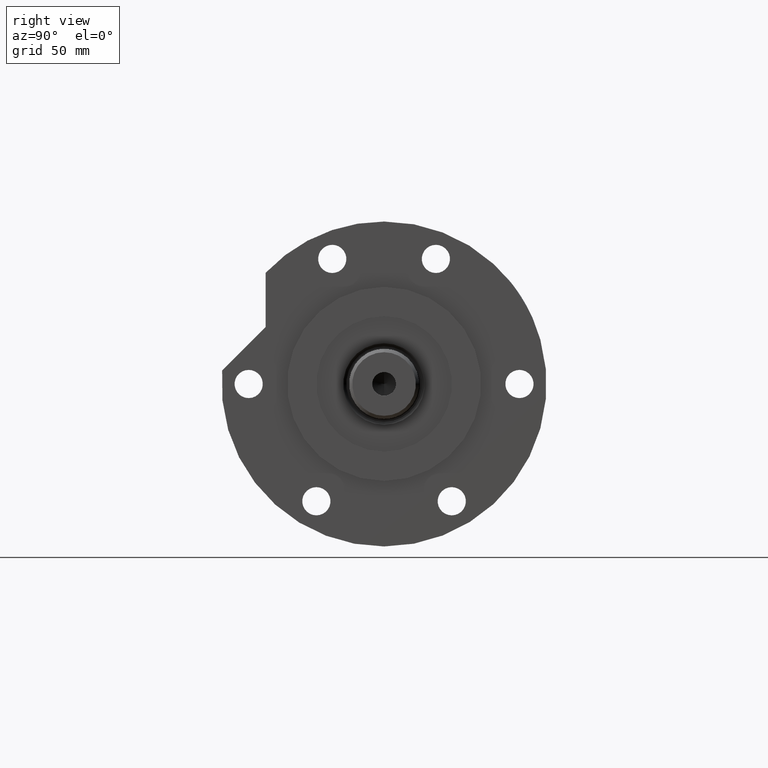
[diagram: clean part render]
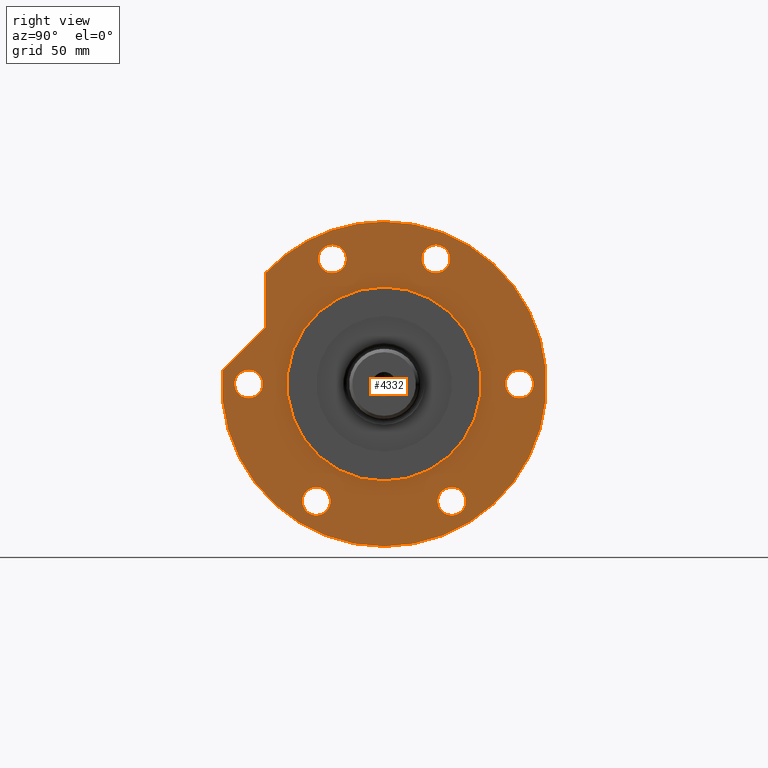
[diagram: same view with one face highlighted and labeled with its STEP entity id]
A machine part, right view. The second image highlights one B-rep face of the part: STEP entity #4332.
In plain terms, the highlighted planar face has unit normal (1, 0, -0).
Its self-contained STEP definition (entity closure, byte-faithful):
#8 = CIRCLE ( 'NONE', #1990, 6.249999999999999112 ) ;
#130 = EDGE_CURVE ( 'NONE', #2410, #4079, #4434, .T. ) ;
#204 = CARTESIAN_POINT ( 'NONE',  ( 6.249999999999999112, 60.00000000000000000, 24.00000000000000000 ) ) ;
#219 = DIRECTION ( 'NONE',  ( 1.000000000000000000, 0.000000000000000000, 0.000000000000000000 ) ) ;
#261 = EDGE_CURVE ( 'NONE', #2818, #5569, #3038, .T. ) ;
#343 = VERTEX_POINT ( 'NONE', #5575 ) ;
#356 = AXIS2_PLACEMENT_3D ( 'NONE', #4897, #642, #1614 ) ;
#377 = DIRECTION ( 'NONE',  ( 1.000000000000000000, 0.000000000000000000, 0.000000000000000000 ) ) ;
#382 = DIRECTION ( 'NONE',  ( 1.000000000000000000, 0.000000000000000000, 0.000000000000000000 ) ) ;
#387 = AXIS2_PLACEMENT_3D ( 'NONE', #3848, #1624, #5367 ) ;
#455 = CIRCLE ( 'NONE', #2235, 6.249999999999999112 ) ;
#506 = CARTESIAN_POINT ( 'NONE',  ( 49.28805468567554726, 52.48511851279232587, 24.00000000000000000 ) ) ;
#527 = DIRECTION ( 'NONE',  ( 1.000000000000000000, 0.000000000000000000, 0.000000000000000000 ) ) ;
#592 = CARTESIAN_POINT ( 'NONE',  ( 0.000000000000000000, -60.00000000000000000, 24.00000000000000000 ) ) ;
#618 = DIRECTION ( 'NONE',  ( 0.000000000000000000, 0.000000000000000000, 1.000000000000000000 ) ) ;
#635 = VERTEX_POINT ( 'NONE', #5763 ) ;
#642 = DIRECTION ( 'NONE',  ( 0.000000000000000000, 0.000000000000000000, 1.000000000000000000 ) ) ;
#656 = CIRCLE ( 'NONE', #1047, 6.249999999999998224 ) ;
#663 = ORIENTED_EDGE ( 'NONE', *, *, #1371, .F. ) ;
#676 = FACE_BOUND ( 'NONE', #3492, .T. ) ;
#680 = EDGE_CURVE ( 'NONE', #343, #4801, #656, .T. ) ;
#735 = FACE_BOUND ( 'NONE', #4569, .T. ) ;
#743 = DIRECTION ( 'NONE',  ( 1.000000000000000000, 0.000000000000000000, 0.000000000000000000 ) ) ;
#769 = CARTESIAN_POINT ( 'NONE',  ( -6.249999999999999112, -60.00000000000000000, 24.00000000000000000 ) ) ;
#787 = CIRCLE ( 'NONE', #5444, 6.249999999999998224 ) ;
#830 = ORIENTED_EDGE ( 'NONE', *, *, #1173, .F. ) ;
#1047 = AXIS2_PLACEMENT_3D ( 'NONE', #2746, #2713, #2179 ) ;
#1106 = DIRECTION ( 'NONE',  ( 0.000000000000000000, 0.000000000000000000, 1.000000000000000000 ) ) ;
#1130 = CARTESIAN_POINT ( 'NONE',  ( -51.96152422706638419, 29.99999999999987921, 24.00000000000000000 ) ) ;
#1173 = EDGE_CURVE ( 'NONE', #3926, #3024, #1958, .T. ) ;
#1177 = DIRECTION ( 'NONE',  ( 0.000000000000000000, 0.000000000000000000, 1.000000000000000000 ) ) ;
#1211 = EDGE_CURVE ( 'NONE', #3312, #4996, #4038, .T. ) ;
#1241 = CARTESIAN_POINT ( 'NONE',  ( -45.71152422706637708, 29.99999999999987921, 24.00000000000000000 ) ) ;
#1259 = CARTESIAN_POINT ( 'NONE',  ( 49.18277195067710039, 22.96100594190562560, 24.00000000000000000 ) ) ;
#1288 = CIRCLE ( 'NONE', #1690, 72.00000000000000000 ) ;
#1313 = EDGE_LOOP ( 'NONE', ( #3997, #4661 ) ) ;
#1352 = DIRECTION ( 'NONE',  ( 0.000000000000000000, 0.000000000000000000, 1.000000000000000000 ) ) ;
#1355 = VERTEX_POINT ( 'NONE', #2984 ) ;
#1371 = EDGE_CURVE ( 'NONE', #3024, #3926, #455, .T. ) ;
#1385 = VERTEX_POINT ( 'NONE', #4353 ) ;
#1582 = CARTESIAN_POINT ( 'NONE',  ( 0.000000000000000000, 0.000000000000000000, 24.00000000000000000 ) ) ;
#1595 = AXIS2_PLACEMENT_3D ( 'NONE', #1582, #3904, #527 ) ;
#1614 = DIRECTION ( 'NONE',  ( 1.000000000000000000, 0.000000000000000000, 0.000000000000000000 ) ) ;
#1624 = DIRECTION ( 'NONE',  ( 0.000000000000000000, 0.000000000000000000, 1.000000000000000000 ) ) ;
#1675 = VERTEX_POINT ( 'NONE', #5481 ) ;
#1680 = CIRCLE ( 'NONE', #387, 43.00000000000000000 ) ;
#1690 = AXIS2_PLACEMENT_3D ( 'NONE', #4303, #1352, #382 ) ;
#1751 = EDGE_CURVE ( 'NONE', #1355, #4996, #4536, .T. ) ;
#1764 = ORIENTED_EDGE ( 'NONE', *, *, #5665, .F. ) ;
#1780 = CARTESIAN_POINT ( 'NONE',  ( 0.000000000000000000, 52.48511851279232587, 24.00000000000000000 ) ) ;
#1818 = VERTEX_POINT ( 'NONE', #3897 ) ;
#1822 = ORIENTED_EDGE ( 'NONE', *, *, #130, .F. ) ;
#1898 = CIRCLE ( 'NONE', #2982, 6.249999999999999112 ) ;
#1957 = DIRECTION ( 'NONE',  ( 0.000000000000000000, 0.000000000000000000, 1.000000000000000000 ) ) ;
#1958 = CIRCLE ( 'NONE', #5409, 6.249999999999999112 ) ;
#1990 = AXIS2_PLACEMENT_3D ( 'NONE', #2017, #3414, #5774 ) ;
#2017 = CARTESIAN_POINT ( 'NONE',  ( 0.000000000000000000, 60.00000000000000000, 24.00000000000000000 ) ) ;
#2128 = FACE_BOUND ( 'NONE', #2930, .T. ) ;
#2153 = ORIENTED_EDGE ( 'NONE', *, *, #6033, .F. ) ;
#2179 = DIRECTION ( 'NONE',  ( 1.000000000000000000, 0.000000000000000000, 0.000000000000000000 ) ) ;
#2178 = AXIS2_PLACEMENT_3D ( 'NONE', #3043, #5415, #5912 ) ;
#2185 = AXIS2_PLACEMENT_3D ( 'NONE', #4860, #3798, #2965 ) ;
#2196 = FACE_BOUND ( 'NONE', #5375, .T. ) ;
#2206 = EDGE_LOOP ( 'NONE', ( #5190, #4192 ) ) ;
#2232 = DIRECTION ( 'NONE',  ( 0.000000000000000000, 0.000000000000000000, 1.000000000000000000 ) ) ;
#2235 = AXIS2_PLACEMENT_3D ( 'NONE', #592, #2897, #5276 ) ;
#2275 = CARTESIAN_POINT ( 'NONE',  ( 6.249999999999999112, -60.00000000000000000, 24.00000000000000000 ) ) ;
#2279 = CIRCLE ( 'NONE', #4656, 6.249999999999998224 ) ;
#2378 = CIRCLE ( 'NONE', #3958, 6.249999999999998224 ) ;
#2410 = VERTEX_POINT ( 'NONE', #2710 ) ;
#2447 = DIRECTION ( 'NONE',  ( 1.000000000000000000, 0.000000000000000000, 0.000000000000000000 ) ) ;
#2490 = CARTESIAN_POINT ( 'NONE',  ( 61.68277195067710750, -22.96100594190562560, 24.00000000000000000 ) ) ;
#2505 = DIRECTION ( 'NONE',  ( 0.000000000000000000, 0.000000000000000000, 1.000000000000000000 ) ) ;
#2539 = CARTESIAN_POINT ( 'NONE',  ( 25.21805468567554698, 52.48511851279232587, 24.00000000000000000 ) ) ;
#2626 = PLANE ( 'NONE',  #2178 ) ;
#2659 = FACE_BOUND ( 'NONE', #5754, .T. ) ;
#2670 = AXIS2_PLACEMENT_3D ( 'NONE', #3878, #1957, #4841 ) ;
#2671 = DIRECTION ( 'NONE',  ( 0.000000000000000000, 0.000000000000000000, 1.000000000000000000 ) ) ;
#2710 = CARTESIAN_POINT ( 'NONE',  ( -58.21152422706638419, 29.99999999999987921, 24.00000000000000000 ) ) ;
#2713 = DIRECTION ( 'NONE',  ( 0.000000000000000000, 0.000000000000000000, 1.000000000000000000 ) ) ;
#2735 = ORIENTED_EDGE ( 'NONE', *, *, #4056, .F. ) ;
#2746 = CARTESIAN_POINT ( 'NONE',  ( 55.43277195067710750, 22.96100594190562560, 24.00000000000000000 ) ) ;
#2766 = EDGE_CURVE ( 'NONE', #635, #1385, #1680, .T. ) ;
#2818 = VERTEX_POINT ( 'NONE', #2490 ) ;
#2849 = VECTOR ( 'NONE', #5561, 1000.000000000000000 ) ;
#2891 = CARTESIAN_POINT ( 'NONE',  ( -58.21152422706618523, -30.00000000000023093, 24.00000000000000000 ) ) ;
#2897 = DIRECTION ( 'NONE',  ( 0.000000000000000000, 0.000000000000000000, 1.000000000000000000 ) ) ;
#2915 = DIRECTION ( 'NONE',  ( 0.7071067811865513475, -0.7071067811865436870, 0.000000000000000000 ) ) ;
#2930 = EDGE_LOOP ( 'NONE', ( #1822, #1764 ) ) ;
#2938 = DIRECTION ( 'NONE',  ( 0.000000000000000000, 0.000000000000000000, 1.000000000000000000 ) ) ;
#2965 = DIRECTION ( 'NONE',  ( 1.000000000000000000, 0.000000000000000000, 0.000000000000000000 ) ) ;
#2982 = AXIS2_PLACEMENT_3D ( 'NONE', #4472, #2232, #219 ) ;
#2984 = CARTESIAN_POINT ( 'NONE',  ( 72.00000000000000000, 8.817456953860941711E-15, 24.00000000000000000 ) ) ;
#3024 = VERTEX_POINT ( 'NONE', #769 ) ;
#3038 = CIRCLE ( 'NONE', #356, 6.249999999999998224 ) ;
#3043 = CARTESIAN_POINT ( 'NONE',  ( 0.000000000000000000, 0.000000000000000000, 24.00000000000000000 ) ) ;
#3280 = ORIENTED_EDGE ( 'NONE', *, *, #3380, .F. ) ;
#3312 = VERTEX_POINT ( 'NONE', #2539 ) ;
#3380 = EDGE_CURVE ( 'NONE', #3400, #1675, #5842, .T. ) ;
#3400 = VERTEX_POINT ( 'NONE', #2891 ) ;
#3414 = DIRECTION ( 'NONE',  ( 0.000000000000000000, 0.000000000000000000, 1.000000000000000000 ) ) ;
#3446 = AXIS2_PLACEMENT_3D ( 'NONE', #1130, #618, #5408 ) ;
#3492 = EDGE_LOOP ( 'NONE', ( #6073, #2735 ) ) ;
#3643 = ORIENTED_EDGE ( 'NONE', *, *, #5707, .T. ) ;
#3776 = CARTESIAN_POINT ( 'NONE',  ( 49.18277195067710039, -22.96100594190562560, 24.00000000000000000 ) ) ;
#3798 = DIRECTION ( 'NONE',  ( 0.000000000000000000, 0.000000000000000000, 1.000000000000000000 ) ) ;
#3848 = CARTESIAN_POINT ( 'NONE',  ( 0.000000000000000000, 0.000000000000000000, 24.00000000000000000 ) ) ;
#3873 = LINE ( 'NONE', #4781, #4373 ) ;
#3878 = CARTESIAN_POINT ( 'NONE',  ( -51.96152422706617813, -30.00000000000023093, 24.00000000000000000 ) ) ;
#3897 = CARTESIAN_POINT ( 'NONE',  ( -6.249999999999999112, 60.00000000000000000, 24.00000000000000000 ) ) ;
#3904 = DIRECTION ( 'NONE',  ( 0.000000000000000000, 0.000000000000000000, 1.000000000000000000 ) ) ;
#3926 = VERTEX_POINT ( 'NONE', #2275 ) ;
#3951 = EDGE_CURVE ( 'NONE', #4575, #5849, #1288, .T. ) ;
#3958 = AXIS2_PLACEMENT_3D ( 'NONE', #5559, #2671, #743 ) ;
#3997 = ORIENTED_EDGE ( 'NONE', *, *, #5098, .F. ) ;
#4001 = FACE_OUTER_BOUND ( 'NONE', #4736, .T. ) ;
#4038 = LINE ( 'NONE', #1780, #2849 ) ;
#4056 = EDGE_CURVE ( 'NONE', #4800, #1818, #1898, .T. ) ;
#4079 = VERTEX_POINT ( 'NONE', #1241 ) ;
#4137 = CARTESIAN_POINT ( 'NONE',  ( 0.000000000000000000, -60.00000000000000000, 24.00000000000000000 ) ) ;
#4176 = CIRCLE ( 'NONE', #5668, 43.00000000000000000 ) ;
#4186 = CARTESIAN_POINT ( 'NONE',  ( -72.00000000000000000, 0.000000000000000000, 24.00000000000000000 ) ) ;
#4192 = ORIENTED_EDGE ( 'NONE', *, *, #261, .F. ) ;
#4275 = CIRCLE ( 'NONE', #1595, 72.00000000000000000 ) ;
#4296 = ORIENTED_EDGE ( 'NONE', *, *, #5699, .F. ) ;
#4303 = CARTESIAN_POINT ( 'NONE',  ( 0.000000000000000000, 0.000000000000000000, 24.00000000000000000 ) ) ;
#4311 = CARTESIAN_POINT ( 'NONE',  ( 0.000000000000000000, 0.000000000000000000, 24.00000000000000000 ) ) ;
#4332 = ADVANCED_FACE ( 'NONE', ( #676, #4494, #4554, #2196, #2659, #2128, #4001, #735 ), #2626, .T. ) ;
#4337 = DIRECTION ( 'NONE',  ( 1.000000000000000000, 0.000000000000000000, 0.000000000000000000 ) ) ;
#4353 = CARTESIAN_POINT ( 'NONE',  ( -43.00000000000000000, 0.000000000000000000, 24.00000000000000000 ) ) ;
#4373 = VECTOR ( 'NONE', #2915, 1000.000000000000000 ) ;
#4412 = ORIENTED_EDGE ( 'NONE', *, *, #3951, .T. ) ;
#4434 = CIRCLE ( 'NONE', #3446, 6.249999999999998224 ) ;
#4472 = CARTESIAN_POINT ( 'NONE',  ( 0.000000000000000000, 60.00000000000000000, 24.00000000000000000 ) ) ;
#4494 = FACE_BOUND ( 'NONE', #1313, .T. ) ;
#4536 = CIRCLE ( 'NONE', #5918, 72.00000000000000000 ) ;
#4540 = ORIENTED_EDGE ( 'NONE', *, *, #1751, .T. ) ;
#4554 = FACE_BOUND ( 'NONE', #2206, .T. ) ;
#4569 = EDGE_LOOP ( 'NONE', ( #4934, #5316 ) ) ;
#4575 = VERTEX_POINT ( 'NONE', #6012 ) ;
#4629 = CARTESIAN_POINT ( 'NONE',  ( 55.43277195067710750, -22.96100594190562560, 24.00000000000000000 ) ) ;
#4656 = AXIS2_PLACEMENT_3D ( 'NONE', #4629, #1177, #377 ) ;
#4661 = ORIENTED_EDGE ( 'NONE', *, *, #680, .F. ) ;
#4731 = ORIENTED_EDGE ( 'NONE', *, *, #1211, .F. ) ;
#4736 = EDGE_LOOP ( 'NONE', ( #4731, #4296, #4412, #3643, #4540 ) ) ;
#4781 = CARTESIAN_POINT ( 'NONE',  ( 38.85158659923380498, 38.85158659923422420, 24.00000000000000000 ) ) ;
#4800 = VERTEX_POINT ( 'NONE', #204 ) ;
#4801 = VERTEX_POINT ( 'NONE', #1259 ) ;
#4841 = DIRECTION ( 'NONE',  ( 1.000000000000000000, 0.000000000000000000, 0.000000000000000000 ) ) ;
#4860 = CARTESIAN_POINT ( 'NONE',  ( -51.96152422706617813, -30.00000000000023093, 24.00000000000000000 ) ) ;
#4861 = DIRECTION ( 'NONE',  ( 1.000000000000000000, 0.000000000000000000, 0.000000000000000000 ) ) ;
#4870 = CIRCLE ( 'NONE', #2185, 6.250000000000005329 ) ;
#4897 = CARTESIAN_POINT ( 'NONE',  ( 55.43277195067710750, -22.96100594190562560, 24.00000000000000000 ) ) ;
#4934 = ORIENTED_EDGE ( 'NONE', *, *, #5980, .F. ) ;
#4967 = DIRECTION ( 'NONE',  ( 1.000000000000000000, 0.000000000000000000, 0.000000000000000000 ) ) ;
#4996 = VERTEX_POINT ( 'NONE', #506 ) ;
#5098 = EDGE_CURVE ( 'NONE', #4801, #343, #2378, .T. ) ;
#5190 = ORIENTED_EDGE ( 'NONE', *, *, #5193, .F. ) ;
#5193 = EDGE_CURVE ( 'NONE', #5569, #2818, #2279, .T. ) ;
#5276 = DIRECTION ( 'NONE',  ( 1.000000000000000000, 0.000000000000000000, 0.000000000000000000 ) ) ;
#5316 = ORIENTED_EDGE ( 'NONE', *, *, #2766, .F. ) ;
#5367 = DIRECTION ( 'NONE',  ( 1.000000000000000000, 0.000000000000000000, 0.000000000000000000 ) ) ;
#5375 = EDGE_LOOP ( 'NONE', ( #663, #830 ) ) ;
#5408 = DIRECTION ( 'NONE',  ( 1.000000000000000000, 0.000000000000000000, 0.000000000000000000 ) ) ;
#5409 = AXIS2_PLACEMENT_3D ( 'NONE', #4137, #6024, #4967 ) ;
#5415 = DIRECTION ( 'NONE',  ( 0.000000000000000000, 0.000000000000000000, 1.000000000000000000 ) ) ;
#5444 = AXIS2_PLACEMENT_3D ( 'NONE', #5823, #1106, #2447 ) ;
#5481 = CARTESIAN_POINT ( 'NONE',  ( -45.71152422706617813, -30.00000000000023093, 24.00000000000000000 ) ) ;
#5559 = CARTESIAN_POINT ( 'NONE',  ( 55.43277195067710750, 22.96100594190562560, 24.00000000000000000 ) ) ;
#5561 = DIRECTION ( 'NONE',  ( 1.000000000000000000, 0.000000000000000000, -0.000000000000000000 ) ) ;
#5569 = VERTEX_POINT ( 'NONE', #3776 ) ;
#5575 = CARTESIAN_POINT ( 'NONE',  ( 61.68277195067710750, 22.96100594190562560, 24.00000000000000000 ) ) ;
#5641 = EDGE_CURVE ( 'NONE', #1818, #4800, #8, .T. ) ;
#5665 = EDGE_CURVE ( 'NONE', #4079, #2410, #787, .T. ) ;
#5668 = AXIS2_PLACEMENT_3D ( 'NONE', #4311, #2938, #4337 ) ;
#5699 = EDGE_CURVE ( 'NONE', #4575, #3312, #3873, .T. ) ;
#5707 = EDGE_CURVE ( 'NONE', #5849, #1355, #4275, .T. ) ;
#5754 = EDGE_LOOP ( 'NONE', ( #3280, #2153 ) ) ;
#5763 = CARTESIAN_POINT ( 'NONE',  ( 43.00000000000000000, 5.265981236333618470E-15, 24.00000000000000000 ) ) ;
#5774 = DIRECTION ( 'NONE',  ( 1.000000000000000000, 0.000000000000000000, 0.000000000000000000 ) ) ;
#5823 = CARTESIAN_POINT ( 'NONE',  ( -51.96152422706638419, 29.99999999999987921, 24.00000000000000000 ) ) ;
#5842 = CIRCLE ( 'NONE', #2670, 6.250000000000005329 ) ;
#5849 = VERTEX_POINT ( 'NONE', #4186 ) ;
#5901 = CARTESIAN_POINT ( 'NONE',  ( 0.000000000000000000, 0.000000000000000000, 24.00000000000000000 ) ) ;
#5912 = DIRECTION ( 'NONE',  ( 1.000000000000000000, 0.000000000000000000, -0.000000000000000000 ) ) ;
#5918 = AXIS2_PLACEMENT_3D ( 'NONE', #5901, #2505, #4861 ) ;
#5980 = EDGE_CURVE ( 'NONE', #1385, #635, #4176, .T. ) ;
#6012 = CARTESIAN_POINT ( 'NONE',  ( 5.949394898342027282, 71.75377830012563152, 24.00000000000000000 ) ) ;
#6024 = DIRECTION ( 'NONE',  ( 0.000000000000000000, 0.000000000000000000, 1.000000000000000000 ) ) ;
#6033 = EDGE_CURVE ( 'NONE', #1675, #3400, #4870, .T. ) ;
#6073 = ORIENTED_EDGE ( 'NONE', *, *, #5641, .F. ) ;